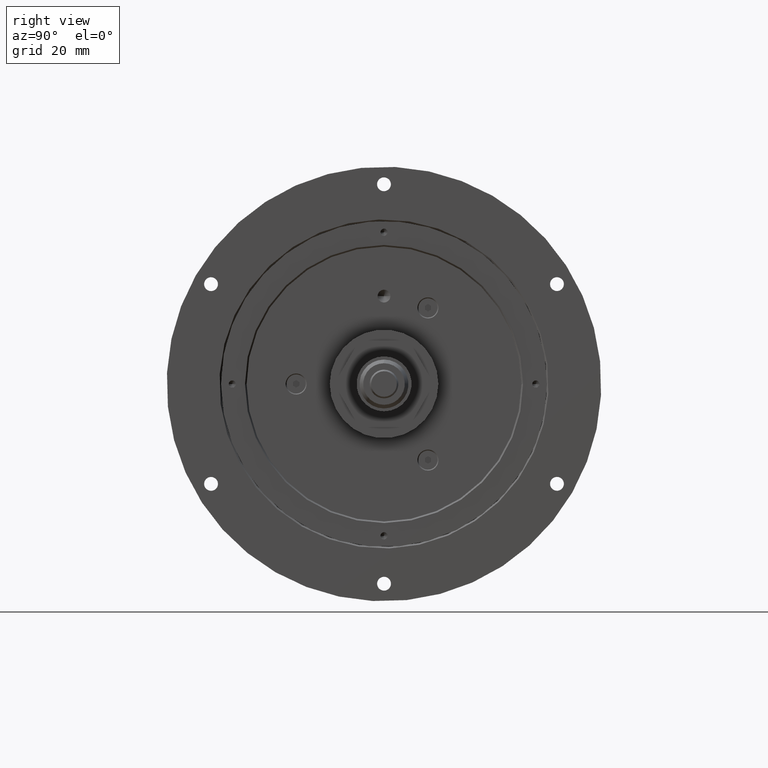
[diagram: clean part render]
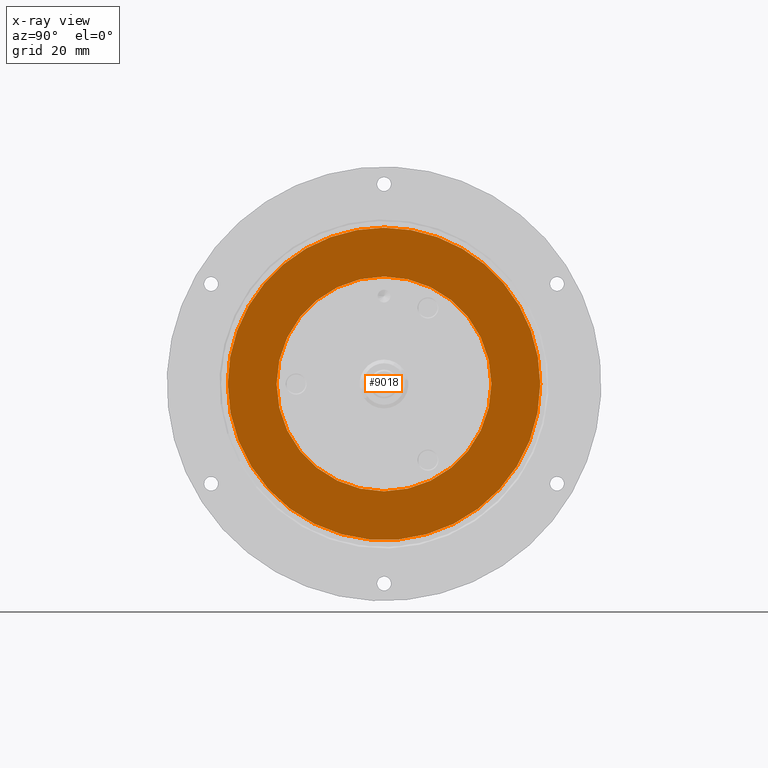
[diagram: x-ray — body ghosted, one internal face saturated and labeled with its STEP entity id]
A machine part, right view, then the same camera in x-ray: the body is ghosted and one INTERNAL B-rep face — a face not visible from any outside direction — is saturated and labeled: STEP entity #9018.
In plain terms, the highlighted planar face has unit normal (-1, -0, 0).
Its self-contained STEP definition (entity closure, byte-faithful):
#8824=CARTESIAN_POINT('',(-9.0,0.0,-33.600000000000001));
#8825=VERTEX_POINT('',#8824);
#8835=CARTESIAN_POINT('',(-9.0,-4.114677E-015,33.600000000000001));
#8836=VERTEX_POINT('',#8835);
#8837=CARTESIAN_POINT('',(-9.0,0.0,0.0));
#8838=DIRECTION('',(-1.0,0.0,0.0));
#8839=DIRECTION('',(0.0,-1.0,0.0));
#8840=AXIS2_PLACEMENT_3D('',#8837,#8838,#8839);
#8841=CIRCLE('',#8840,33.600000000000001);
#8842=EDGE_CURVE('',#8825,#8836,#8841,.T.);
#8917=CARTESIAN_POINT('',(-9.0,0.0,-48.899999999999999));
#8918=VERTEX_POINT('',#8917);
#8936=CARTESIAN_POINT('',(-9.0,-5.988325E-015,48.899999999999999));
#8937=VERTEX_POINT('',#8936);
#8945=CARTESIAN_POINT('',(-9.0,0.0,0.0));
#8946=DIRECTION('',(1.0,0.0,0.0));
#8947=DIRECTION('',(0.0,-1.0,0.0));
#8948=AXIS2_PLACEMENT_3D('',#8945,#8946,#8947);
#8949=CIRCLE('',#8948,48.899999999999999);
#8950=EDGE_CURVE('',#8937,#8918,#8949,.T.);
#8961=CARTESIAN_POINT('',(-9.0,48.899999999999999,0.0));
#8962=VERTEX_POINT('',#8961);
#8963=CARTESIAN_POINT('',(-9.0,0.0,0.0));
#8964=DIRECTION('',(1.0,0.0,0.0));
#8965=DIRECTION('',(0.0,-1.0,0.0));
#8966=AXIS2_PLACEMENT_3D('',#8963,#8964,#8965);
#8967=CIRCLE('',#8966,48.899999999999999);
#8968=EDGE_CURVE('',#8918,#8962,#8967,.T.);
#8970=CARTESIAN_POINT('',(-9.0,0.0,0.0));
#8971=DIRECTION('',(1.0,0.0,0.0));
#8972=DIRECTION('',(0.0,-1.0,0.0));
#8973=AXIS2_PLACEMENT_3D('',#8970,#8971,#8972);
#8974=CIRCLE('',#8973,48.899999999999999);
#8975=EDGE_CURVE('',#8962,#8937,#8974,.T.);
#8989=CARTESIAN_POINT('',(-9.0,41.250000000000000,0.0));
#8990=DIRECTION('',(-1.0,0.0,0.0));
#8991=DIRECTION('',(0.0,0.0,1.0));
#8992=AXIS2_PLACEMENT_3D('',#8989,#8990,#8991);
#8993=PLANE('',#8992);
#8994=ORIENTED_EDGE('',*,*,#8975,.F.);
#8995=ORIENTED_EDGE('',*,*,#8968,.F.);
#8996=ORIENTED_EDGE('',*,*,#8950,.F.);
#8997=EDGE_LOOP('',(#8994,#8995,#8996));
#8998=FACE_OUTER_BOUND('',#8997,.T.);
#8999=CARTESIAN_POINT('',(-9.0,33.600000000000001,-8.229355E-015));
#9000=VERTEX_POINT('',#8999);
#9001=CARTESIAN_POINT('',(-9.0,0.0,0.0));
#9002=DIRECTION('',(-1.0,0.0,0.0));
#9003=DIRECTION('',(0.0,-1.0,0.0));
#9004=AXIS2_PLACEMENT_3D('',#9001,#9002,#9003);
#9005=CIRCLE('',#9004,33.600000000000001);
#9006=EDGE_CURVE('',#9000,#8825,#9005,.T.);
#9007=ORIENTED_EDGE('',*,*,#9006,.F.);
#9008=CARTESIAN_POINT('',(-9.0,0.0,0.0));
#9009=DIRECTION('',(-1.0,0.0,0.0));
#9010=DIRECTION('',(0.0,-1.0,0.0));
#9011=AXIS2_PLACEMENT_3D('',#9008,#9009,#9010);
#9012=CIRCLE('',#9011,33.600000000000001);
#9013=EDGE_CURVE('',#8836,#9000,#9012,.T.);
#9014=ORIENTED_EDGE('',*,*,#9013,.F.);
#9015=ORIENTED_EDGE('',*,*,#8842,.F.);
#9016=EDGE_LOOP('',(#9007,#9014,#9015));
#9017=FACE_BOUND('',#9016,.T.);
#9018=ADVANCED_FACE('',(#8998,#9017),#8993,.T.);